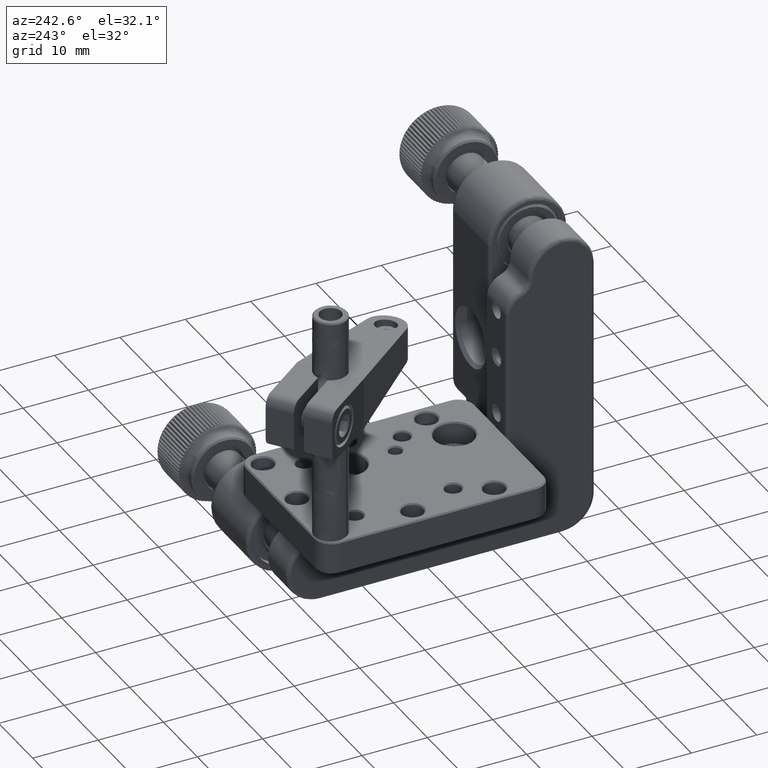
[diagram: clean part render]
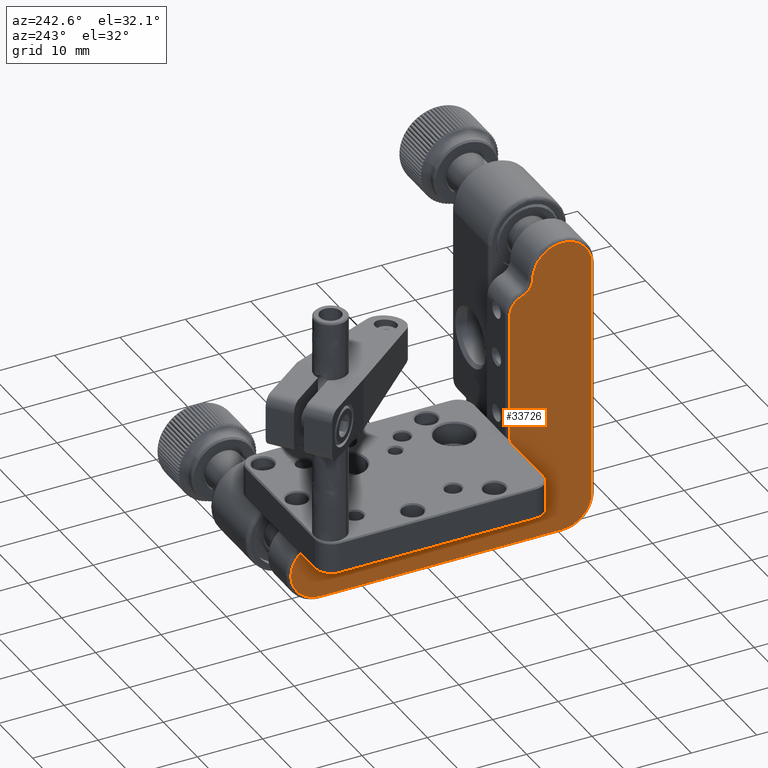
[diagram: same view with one face highlighted and labeled with its STEP entity id]
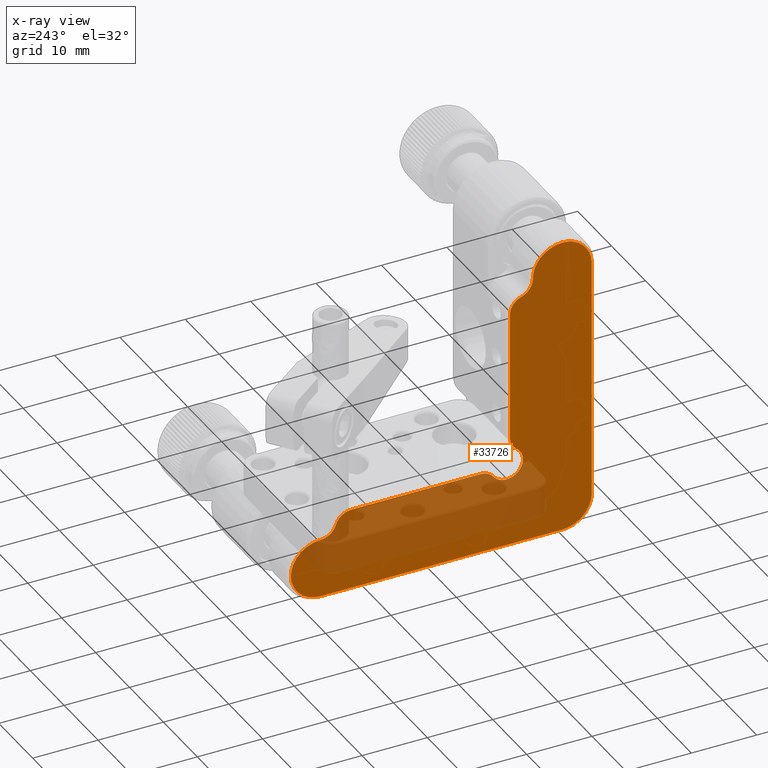
[diagram: x-ray of the same camera — body ghosted, the highlighted face saturated]
A machine part, auxiliary view. The second image highlights one B-rep face of the part: STEP entity #33726.
The next image is the same camera in x-ray: the body ghosted, the highlighted face saturated — about 34% of this face is hidden behind the body in this view.
In plain terms, the highlighted planar face has unit normal (-1, 0, 0).
Its self-contained STEP definition (entity closure, byte-faithful):
#101 = ORIENTED_EDGE ( 'NONE', *, *, #26489, .T. ) ;
#308 = CARTESIAN_POINT ( 'NONE',  ( -15.49999999999999645, -18.15695654863025865, 22.99060926522500381 ) ) ;
#451 = CARTESIAN_POINT ( 'NONE',  ( -15.50000000000000000, -12.49241278484525886, -10.20070522342076025 ) ) ;
#745 = CARTESIAN_POINT ( 'NONE',  ( -15.49999999999999822, -12.29126569502228072, -11.00396265203691115 ) ) ;
#899 = CARTESIAN_POINT ( 'NONE',  ( -15.50000000000000178, -16.16585847123962338, 22.34806293782554576 ) ) ;
#1043 = CARTESIAN_POINT ( 'NONE',  ( -15.50000000000000178, -9.047449407507558661, -12.31470221860941550 ) ) ;
#1168 = B_SPLINE_CURVE_WITH_KNOTS ( 'NONE', 3,
 ( #29521, #2992, #7769, #20885, #52750, #47686, #6904, #2414, #21174, #34290, #39056, #22644, #40524, #27395, #12831, #49147, #40813, #54225, #30957, #8348, #40223, #44975, #39922, #18160, #58698, #17867, #50047, #48856, #26498, #4456, #36014, #36614, #44389, #3859, #58398, #30681, #45565, #4746, #53923, #9235 ),
 .UNSPECIFIED., .F., .F.,
 ( 4, 1, 1, 2, 2, 1, 1, 2, 2, 1, 2, 2, 2, 1, 2, 2, 1, 1, 2, 2, 1, 1, 2, 2, 4 ),
 ( 0.000000000000000000, 0.06250000000000056899, 0.09375000000000163758, 0.1093750000000013878, 0.1250000000000011380, 0.1875000000000006661, 0.2187499999999997502, 0.2343749999999992784, 0.2499999999999988065, 0.3124999999999985012, 0.3437499999999990008, 0.3749999999999995004, 0.5000000000000025535, 0.5625000000000041078, 0.5937500000000039968, 0.6250000000000037748, 0.6875000000000021094, 0.7187500000000023315, 0.7343750000000029976, 0.7500000000000036637, 0.8125000000000075495, 0.8437500000000091038, 0.8593750000000089928, 0.8750000000000089928, 1.000000000000000000 ),
 .UNSPECIFIED. ) ;
#1334 = CARTESIAN_POINT ( 'NONE',  ( -15.50000000000000178, -8.098793398174166214, -11.63172453757016278 ) ) ;
#1453 = CARTESIAN_POINT ( 'NONE',  ( -15.49999999999999467, 19.91703639534388515, -14.22782311311680914 ) ) ;
#1542 = CARTESIAN_POINT ( 'NONE',  ( -15.50000000000000000, 20.63922934306437895, -22.46415526202876478 ) ) ;
#1728 = CARTESIAN_POINT ( 'NONE',  ( -15.50000000000000533, -20.83414153192902063, -22.34806294137855431 ) ) ;
#1837 = CARTESIAN_POINT ( 'NONE',  ( -15.50000000000000000, 19.46186726256786415, -22.89615636882984617 ) ) ;
#1932 = CARTESIAN_POINT ( 'NONE',  ( -15.50000000015971757, -7.999999998439328408, -11.50000000321939453 ) ) ;
#2044 = CARTESIAN_POINT ( 'NONE',  ( -15.50000000000000178, 22.67062919380827424, -16.80969183655279053 ) ) ;
#2129 = CARTESIAN_POINT ( 'NONE',  ( -15.50000000000000178, 22.89836560274199329, -19.46217191241514399 ) ) ;
#2414 = CARTESIAN_POINT ( 'NONE',  ( -15.50000000000000000, -22.89836560130976650, 19.46217190921475293 ) ) ;
#2434 = CARTESIAN_POINT ( 'NONE',  ( -15.50000000000000711, 14.42728365890299003, -10.59890226320357520 ) ) ;
#2618 = CARTESIAN_POINT ( 'NONE',  ( -15.50000000000000711, -19.91703639825642824, -22.77217689043723325 ) ) ;
#2631 = CARTESIAN_POINT ( 'NONE',  ( -15.49999999999999822, 22.22491422092800306, -15.97399544505506341 ) ) ;
#2719 = CARTESIAN_POINT ( 'NONE',  ( -15.50000000000000533, 21.21635590809892591, -22.08856315978979978 ) ) ;
#2721 = CARTESIAN_POINT ( 'NONE',  ( -15.50000000010647661, 13.73030399171786442, -10.49999999959265828 ) ) ;
#2810 = CARTESIAN_POINT ( 'NONE',  ( -15.50000000015971580, -12.25000000089559826, 16.11515199496088258 ) ) ;
#2903 = CARTESIAN_POINT ( 'NONE',  ( -15.50000000000000000, -22.58002355275392858, -20.40098430989682754 ) ) ;
#2917 = CARTESIAN_POINT ( 'NONE',  ( -15.50000000000000355, 22.08856315564664996, -15.78364409343038766 ) ) ;
#2992 = CARTESIAN_POINT ( 'NONE',  ( -15.50000000000000711, -22.99999999801699246, 18.63753670543276186 ) ) ;
#3009 = CARTESIAN_POINT ( 'NONE',  ( -15.49999999999999645, 16.03738134301428175, -12.00270509210193737 ) ) ;
#3110 = CARTESIAN_POINT ( 'NONE',  ( -15.50000000000000178, -11.33853470422812393, 15.61819394827450402 ) ) ;
#3197 = CARTESIAN_POINT ( 'NONE',  ( -15.50000000000000711, -22.80807780504554216, -19.81455333445901701 ) ) ;
#3397 = CARTESIAN_POINT ( 'NONE',  ( -15.50000000000000000, -10.79747556851549284, 14.92703505639021522 ) ) ;
#3859 = CARTESIAN_POINT ( 'NONE',  ( -15.50000000000000178, -19.56847453535885961, 22.87239746648150174 ) ) ;
#4043 = CARTESIAN_POINT ( 'NONE',  ( -15.50000000000000000, -11.98810993713263073, -11.52464077376316531 ) ) ;
#4456 = CARTESIAN_POINT ( 'NONE',  ( -15.50000000000000355, -20.22697634312690340, 22.65559531845407903 ) ) ;
#4482 = CARTESIAN_POINT ( 'NONE',  ( -15.50000000000000178, -14.02504195186718050, 19.04835519845952518 ) ) ;
#4632 = CARTESIAN_POINT ( 'NONE',  ( -15.50000000000000178, -12.50249836180289087, -10.05922864419506269 ) ) ;
#4746 = CARTESIAN_POINT ( 'NONE',  ( -15.50000000000000000, -19.04835520125629600, 22.97495805034708383 ) ) ;
#4778 = CARTESIAN_POINT ( 'NONE',  ( -15.50000000000000000, -14.08138633339904011, 19.35264355216270715 ) ) ;
#4811 = CARTESIAN_POINT ( 'NONE',  ( -15.50000000006654943, 18.49999999908400028, -22.99999999999892353 ) ) ;
#5217 = CARTESIAN_POINT ( 'NONE',  ( -15.50000000000000178, -12.09219735798963491, -8.630176796398046690 ) ) ;
#5278 = CARTESIAN_POINT ( 'NONE',  ( -15.50000000000000000, -10.49999999850741794, 0.1379999999999992344 ) ) ;
#5364 = CARTESIAN_POINT ( 'NONE',  ( -15.50000000000000533, -15.77781970227107600, 22.09671451996856817 ) ) ;
#5507 = CARTESIAN_POINT ( 'NONE',  ( -15.50000000000000178, -10.01211027816113308, -12.50712413303505954 ) ) ;
#5544 = CARTESIAN_POINT ( 'NONE',  ( -15.50000000000000178, -10.67615616390208899, -6.942385666775453323 ) ) ;
#5623 = CARTESIAN_POINT ( 'NONE',  ( -15.49999999999999822, 19.67437459673316269, -14.15161916725742053 ) ) ;
#5859 = EDGE_CURVE ( 'NONE', #18656, #26080, #41810, .T. ) ;
#6026 = CARTESIAN_POINT ( 'NONE',  ( -15.50000000000000178, 21.90136572585386787, -21.46254167121661638 ) ) ;
#6130 = LINE ( 'NONE', #37407, #43269 ) ;
#6417 = CARTESIAN_POINT ( 'NONE',  ( -15.50000000000000178, -11.00371867589058894, -12.29008391888597451 ) ) ;
#6509 = CARTESIAN_POINT ( 'NONE',  ( -15.50000000000000178, -13.12724032458408630, 16.59979367998847266 ) ) ;
#6511 = CARTESIAN_POINT ( 'NONE',  ( -15.50000000000000355, -19.18325954997103722, -22.94795970294516252 ) ) ;
#6621 = CARTESIAN_POINT ( 'NONE',  ( -15.50000000000000000, 20.29685008848805694, -22.62587423534057862 ) ) ;
#6718 = CARTESIAN_POINT ( 'NONE',  ( -15.50000000000000000, -8.839714798412275698, -12.21456294979482848 ) ) ;
#6827 = CARTESIAN_POINT ( 'NONE',  ( -15.50000000000000000, 21.79169993514635095, -15.42771209313067970 ) ) ;
#6833 = EDGE_CURVE ( 'NONE', #13639, #45346, #24684, .T. ) ;
#6904 = CARTESIAN_POINT ( 'NONE',  ( -15.50000000000000178, -22.93150129466717502, 19.28299919169977983 ) ) ;
#6922 = CARTESIAN_POINT ( 'NONE',  ( -15.50000000000000355, 20.19030816433711095, -22.67062919800791576 ) ) ;
#7113 = CARTESIAN_POINT ( 'NONE',  ( -15.50000000000000178, -21.22218030095627483, -22.09671452339237163 ) ) ;
#7232 = B_SPLINE_CURVE_WITH_KNOTS ( 'NONE', 3,
 ( #15416, #38351, #33874, #11259, #44848, #21050, #57696, #34735, #35032, #52921, #30561, #35604, #21628, #26676, #39807, #44272 ),
 .UNSPECIFIED., .F., .F.,
 ( 4, 1, 2, 2, 2, 1, 2, 2, 4 ),
 ( 0.000000000000000000, 0.1249999999999999167, 0.1874999999999998612, 0.2499999999999997780, 0.4999999999999988898, 0.6249999999999988898, 0.6874999999999988898, 0.7499999999999988898, 1.000000000000000000 ),
 .UNSPECIFIED. ) ;
#7273 = VERTEX_POINT ( 'NONE', #4811 ) ;
#7394 = CARTESIAN_POINT ( 'NONE',  ( -15.49999999999999822, -20.12111814566462087, -22.69802070286225870 ) ) ;
#7407 = CARTESIAN_POINT ( 'NONE',  ( -15.50000000000000000, 20.83414152895990412, -14.65193706183728573 ) ) ;
#7495 = CARTESIAN_POINT ( 'NONE',  ( -15.49999999999999822, 15.47235906811537021, -11.19763399847615126 ) ) ;
#7591 = CARTESIAN_POINT ( 'NONE',  ( -15.50000000000000178, -11.66889686358426736, 15.84675668709614449 ) ) ;
#7623 = ORIENTED_EDGE ( 'NONE', *, *, #18124, .T. ) ;
#7769 = CARTESIAN_POINT ( 'NONE',  ( -15.50000000000000000, -22.99060926776432012, 18.84304345140767367 ) ) ;
#7893 = CARTESIAN_POINT ( 'NONE',  ( -15.50000000000000000, -13.89238977702136424, 17.77364219649279420 ) ) ;
#8348 = CARTESIAN_POINT ( 'NONE',  ( -15.50000000000000533, -21.90136572629067047, 21.46254166753215742 ) ) ;
#8396 = CARTESIAN_POINT ( 'NONE',  ( -15.50000000000000000, 0.1380000000000009552, -23.00000000000000000 ) ) ;
#8650 = CARTESIAN_POINT ( 'NONE',  ( -15.49999999999999645, 16.22562538999379811, -12.55213903818662580 ) ) ;
#8667 = CARTESIAN_POINT ( 'NONE',  ( -15.50000000000000178, -17.32562540336088475, 22.84838083236349604 ) ) ;
#8820 = CARTESIAN_POINT ( 'NONE',  ( -15.49999999999999822, -11.42223111570783090, -12.05612670774286954 ) ) ;
#8951 = CARTESIAN_POINT ( 'NONE',  ( -15.50000000000000000, 18.24076449479857942, -14.00000000466734207 ) ) ;
#8967 = CARTESIAN_POINT ( 'NONE',  ( -15.49999999999999645, -14.00000000451968951, 18.77541062009800044 ) ) ;
#8975 = DIRECTION ( 'NONE',  ( -1.000000000000000000, 0.000000000000000000, 0.000000000000000000 ) ) ;
#9235 = CARTESIAN_POINT ( 'NONE',  ( -15.50000000015971935, -18.50000000156878954, 22.99999999625456937 ) ) ;
#9266 = CARTESIAN_POINT ( 'NONE',  ( -15.50000000000000178, -18.36246329458047555, 22.99999999548031226 ) ) ;
#9419 = CARTESIAN_POINT ( 'NONE',  ( -15.50000000000000000, -12.50045898228703223, -9.917440904586790396 ) ) ;
#9705 = CARTESIAN_POINT ( 'NONE',  ( -15.50000000000000000, -12.47672285327616315, -10.34341308632722445 ) ) ;
#9725 = VECTOR ( 'NONE', #48382, 1000.000000000000000 ) ;
#9767 = DIRECTION ( 'NONE',  ( 0.000000000000000000, 0.000000000000000000, -1.000000000000000000 ) ) ;
#10009 = CARTESIAN_POINT ( 'NONE',  ( -15.50000000000000533, -9.356862174025264878, -12.41632651386384012 ) ) ;
#10503 = CARTESIAN_POINT ( 'NONE',  ( -15.49999999999999645, 22.99060926963782947, -18.84304345425109162 ) ) ;
#10604 = CARTESIAN_POINT ( 'NONE',  ( -15.50000000000000178, -9.728111037936290728, -12.48700372308148410 ) ) ;
#10997 = CARTESIAN_POINT ( 'NONE',  ( -15.50000000015971580, -12.25000000089559826, 16.11515199496088258 ) ) ;
#11020 = CARTESIAN_POINT ( 'NONE',  ( -15.49999999999999822, 20.89750978558359051, -14.69107888371854287 ) ) ;
#11200 = CARTESIAN_POINT ( 'NONE',  ( -15.50000000000000355, -10.96512580856627395, -12.30664749743284858 ) ) ;
#11259 = CARTESIAN_POINT ( 'NONE',  ( -15.49999999999999822, -7.749592089162936404, -11.21357429661077632 ) ) ;
#11294 = CARTESIAN_POINT ( 'NONE',  ( -15.50000000000000000, -19.46217191202575236, -22.89836560289024447 ) ) ;
#11310 = CARTESIAN_POINT ( 'NONE',  ( -15.50000000000000533, 20.70325320258278978, -14.57549187022692649 ) ) ;
#11325 = CARTESIAN_POINT ( 'NONE',  ( -15.50000000015971757, 22.99999999759440072, -18.50000000209171702 ) ) ;
#11399 = CARTESIAN_POINT ( 'NONE',  ( -15.50000000000000355, 20.40098430794065365, -22.58002355359532487 ) ) ;
#11688 = CARTESIAN_POINT ( 'NONE',  ( -15.49999999999999645, 19.81455333223175685, -22.80807780565981702 ) ) ;
#11888 = CARTESIAN_POINT ( 'NONE',  ( -15.50000000000000000, 22.34961094938589810, -16.16467744570687159 ) ) ;
#11978 = CARTESIAN_POINT ( 'NONE',  ( -15.50000000000000000, 14.98952199108073025, -10.82321941466644333 ) ) ;
#12337 = EDGE_CURVE ( 'NONE', #47474, #7273, #13246, .T. ) ;
#12831 = CARTESIAN_POINT ( 'NONE',  ( -15.50000000000000000, -22.53403797003634068, 20.50433474589222271 ) ) ;
#12917 = EDGE_CURVE ( 'NONE', #26080, #20055, #22583, .T. ) ;
#13029 = CARTESIAN_POINT ( 'NONE',  ( -15.50000000000000355, -22.89615636837832824, -19.46186726493184338 ) ) ;
#13246 = B_SPLINE_CURVE_WITH_KNOTS ( 'NONE', 3,
 ( #16144, #29538, #10503, #34306, #20319, #15853, #20028, #2129, #33130, #38788, #24795, #33431, #42969, #52482, #51297, #56081, #47704, #38489, #20900, #6026, #56963, #24202, #2719, #56676, #42384, #56373, #1542, #11399, #6621, #14959, #6922, #34009, #11688, #37892, #1837, #15550, #43260, #52178, #19724, #20613 ),
 .UNSPECIFIED., .F., .F.,
 ( 4, 1, 1, 2, 2, 1, 1, 2, 2, 1, 2, 2, 2, 1, 2, 2, 1, 1, 2, 2, 1, 1, 2, 2, 4 ),
 ( 0.000000000000000000, 0.06250000000000137390, 0.09375000000000278944, 0.1093750000000026923, 0.1250000000000026090, 0.1874999999999984179, 0.2187499999999963363, 0.2343749999999960032, 0.2499999999999956424, 0.3124999999999977796, 0.3437499999999978351, 0.3749999999999978906, 0.4999999999999974465, 0.5624999999999972244, 0.5937499999999971134, 0.6249999999999968914, 0.6874999999999972244, 0.7187499999999967804, 0.7343749999999967804, 0.7499999999999967804, 0.8124999999999967804, 0.8437499999999976685, 0.8593749999999981126, 0.8749999999999985567, 1.000000000000000000 ),
 .UNSPECIFIED. ) ;
#13433 = CARTESIAN_POINT ( 'NONE',  ( -15.50000000000000355, -16.91162032150598549, 22.71050495979846673 ) ) ;
#13437 = CARTESIAN_POINT ( 'NONE',  ( -15.50000000015971757, -14.00000000434766356, 18.49999999853440258 ) ) ;
#13581 = CARTESIAN_POINT ( 'NONE',  ( -15.50000000000000000, -11.50576199091818097, -11.99641555116131997 ) ) ;
#13639 = VERTEX_POINT ( 'NONE', #58722 ) ;
#13723 = CARTESIAN_POINT ( 'NONE',  ( -15.50000000000000178, -14.53584474249779568, 20.63922934172885348 ) ) ;
#13904 = CARTESIAN_POINT ( 'NONE',  ( -15.50000000000000355, -10.60954541442888832, -6.757955660591016489 ) ) ;
#14012 = CARTESIAN_POINT ( 'NONE',  ( -15.50000000000000178, -17.74890346439388011, 22.93700384668426651 ) ) ;
#14156 = CARTESIAN_POINT ( 'NONE',  ( -15.50000000000000178, -11.63771338618392726, -8.103285034646962259 ) ) ;
#14190 = CARTESIAN_POINT ( 'NONE',  ( -15.50000000000000000, -10.54474000137156153, -6.473258102663212554 ) ) ;
#14274 = CARTESIAN_POINT ( 'NONE',  ( -15.49999999999999822, 19.08140427538432604, -14.03678036429819542 ) ) ;
#14304 = CARTESIAN_POINT ( 'NONE',  ( -15.50000000000000000, -15.20830006514129806, 21.57228790660404272 ) ) ;
#14368 = EDGE_CURVE ( 'NONE', #19706, #49832, #29440, .T. ) ;
#14452 = CARTESIAN_POINT ( 'NONE',  ( -15.50000000000000000, -12.12696278849903742, -11.31397018462759796 ) ) ;
#14571 = CARTESIAN_POINT ( 'NONE',  ( -15.50000000000000355, 19.25109653567218970, -14.06299615292988747 ) ) ;
#14655 = ORIENTED_EDGE ( 'NONE', *, *, #12337, .T. ) ;
#14742 = VERTEX_POINT ( 'NONE', #47515 ) ;
#14959 = CARTESIAN_POINT ( 'NONE',  ( -15.50000000000000178, 20.22697634120864407, -22.65559532150463440 ) ) ;
#15353 = CARTESIAN_POINT ( 'NONE',  ( -15.49999999999999822, -11.20179072708237022, -12.19532546717636379 ) ) ;
#15416 = CARTESIAN_POINT ( 'NONE',  ( -15.50000000015971757, -7.999999998439328408, -11.50000000321939453 ) ) ;
#15550 = CARTESIAN_POINT ( 'NONE',  ( -15.50000000000000000, 19.39054132041762557, -22.91114970850638244 ) ) ;
#15556 = VECTOR ( 'NONE', #9767, 1000.000000000000000 ) ;
#15651 = CARTESIAN_POINT ( 'NONE',  ( -15.50000000000000000, -9.587459925046069031, -12.46897079156902954 ) ) ;
#15716 = EDGE_CURVE ( 'NONE', #14742, #38605, #6130, .T. ) ;
#15745 = CARTESIAN_POINT ( 'NONE',  ( -15.49999999999999822, -12.96495232926114127, 16.47393801215991971 ) ) ;
#15747 = CARTESIAN_POINT ( 'NONE',  ( -15.50000000000000355, -19.28299919448957311, -22.93150129635299450 ) ) ;
#15853 = CARTESIAN_POINT ( 'NONE',  ( -15.50000000000000533, 22.93700385082711080, -19.25109653879880511 ) ) ;
#15940 = CARTESIAN_POINT ( 'NONE',  ( -15.50000000000000178, -11.08361804470706069, -12.25340113220476645 ) ) ;
#16036 = CARTESIAN_POINT ( 'NONE',  ( -15.50000000000000178, -19.67437459961468704, -22.84838083640731909 ) ) ;
#16053 = CARTESIAN_POINT ( 'NONE',  ( -15.49999999999999822, 22.62587423114653973, -16.70314991246544878 ) ) ;
#16144 = CARTESIAN_POINT ( 'NONE',  ( -15.50000000015971757, 22.99999999759440072, -18.50000000209171702 ) ) ;
#16147 = CARTESIAN_POINT ( 'NONE',  ( -15.50000000000000178, 14.74887388194845350, -10.70062817855785298 ) ) ;
#16182 = ORIENTED_EDGE ( 'NONE', *, *, #15716, .T. ) ;
#16323 = CARTESIAN_POINT ( 'NONE',  ( -15.49999999999999645, -22.08856315875969756, -21.21635590956258000 ) ) ;
#16336 = CARTESIAN_POINT ( 'NONE',  ( -15.50000000000000000, 22.46415525785092981, -16.36077065809168829 ) ) ;
#16431 = CARTESIAN_POINT ( 'NONE',  ( -15.50000000000000178, 14.45666179357415437, -10.60761022774042139 ) ) ;
#16529 = CARTESIAN_POINT ( 'NONE',  ( -15.50000000000000178, -11.75086842189330660, 15.89765003325123871 ) ) ;
#16614 = CARTESIAN_POINT ( 'NONE',  ( -15.50000000000000533, -21.46254167020278203, -21.90136572680769333 ) ) ;
#16880 = VERTEX_POINT ( 'NONE', #23704 ) ;
#16947 = ORIENTED_EDGE ( 'NONE', *, *, #26230, .T. ) ;
#17198 = CARTESIAN_POINT ( 'NONE',  ( -15.49999999999999822, -22.97495805250168388, -19.04835520128878201 ) ) ;
#17300 = CARTESIAN_POINT ( 'NONE',  ( -15.50000000000000178, 15.92399446638904870, -11.77320841828667852 ) ) ;
#17329 = LINE ( 'NONE', #8396, #32523 ) ;
#17408 = CARTESIAN_POINT ( 'NONE',  ( -15.50000000000000178, -12.99387846219170939, 16.49512826328689385 ) ) ;
#17589 = CARTESIAN_POINT ( 'NONE',  ( -15.50000000000000178, 16.41859263597514484, -12.88520555148496882 ) ) ;
#17867 = CARTESIAN_POINT ( 'NONE',  ( -15.50000000000000178, -20.83532255706576919, 22.34961095021183297 ) ) ;
#17876 = CARTESIAN_POINT ( 'NONE',  ( -15.49999999999999822, 17.67639229199434681, -13.86068928373189024 ) ) ;
#18043 = CARTESIAN_POINT ( 'NONE',  ( -15.49999999999999822, -12.14834562678278473, -8.721295580451611684 ) ) ;
#18124 = EDGE_CURVE ( 'NONE', #25739, #14742, #28246, .T. ) ;
#18160 = CARTESIAN_POINT ( 'NONE',  ( -15.50000000000000000, -21.09131805600828358, 22.17982826616640324 ) ) ;
#18173 = CARTESIAN_POINT ( 'NONE',  ( -15.50000000000000000, 17.30326893391682574, -13.70252443416317689 ) ) ;
#18192 = CARTESIAN_POINT ( 'NONE',  ( -15.49999999999999822, -14.10384363576897115, 19.46186726198277128 ) ) ;
#18200 = FACE_OUTER_BOUND ( 'NONE', #20723, .T. ) ;
#18345 = CARTESIAN_POINT ( 'NONE',  ( -15.50000000000000355, -12.33043209744818647, -9.090190557370554814 ) ) ;
#18656 = VERTEX_POINT ( 'NONE', #33376 ) ;
#18774 = CARTESIAN_POINT ( 'NONE',  ( -15.50000000000000355, -16.87888185742263047, 22.69802069903595410 ) ) ;
#18924 = CARTESIAN_POINT ( 'NONE',  ( -15.49999999999999822, -12.23636497585104443, -11.12357559465902312 ) ) ;
#18956 = CARTESIAN_POINT ( 'NONE',  ( -15.50000000000000178, -10.50000000368367026, -6.095603519261961978 ) ) ;
#19044 = CARTESIAN_POINT ( 'NONE',  ( -15.50000000015971757, 18.49999999887835145, -14.00000000471161421 ) ) ;
#19106 = EDGE_CURVE ( 'NONE', #16880, #45764, #21562, .T. ) ;
#19262 = CARTESIAN_POINT ( 'NONE',  ( -15.49999999999999822, -10.80781995700431075, -7.205858146731564773 ) ) ;
#19522 = CARTESIAN_POINT ( 'NONE',  ( -15.50000000000000533, -10.83617719154156767, -12.35785066681609834 ) ) ;
#19637 = CARTESIAN_POINT ( 'NONE',  ( -15.50000000000000178, 20.01998259398833824, -14.26431517243118208 ) ) ;
#19706 = VERTEX_POINT ( 'NONE', #58430 ) ;
#19724 = CARTESIAN_POINT ( 'NONE',  ( -15.49999999999999645, 18.77541062026798713, -23.00000000009823253 ) ) ;
#20028 = CARTESIAN_POINT ( 'NONE',  ( -15.50000000000000000, 22.93150129623182210, -19.28299919480681623 ) ) ;
#20055 = VERTEX_POINT ( 'NONE', #54190 ) ;
#20233 = CARTESIAN_POINT ( 'NONE',  ( -15.50000000000000000, 22.73771997961375035, -16.97910169584036666 ) ) ;
#20319 = CARTESIAN_POINT ( 'NONE',  ( -15.50000000000000000, 22.94795970283777820, -19.18325955024647556 ) ) ;
#20613 = CARTESIAN_POINT ( 'NONE',  ( -15.50000000006654943, 18.49999999908400028, -22.99999999999892353 ) ) ;
#20723 = EDGE_LOOP ( 'NONE', ( #57251, #50552, #29999, #14655, #33545, #7623, #16182, #32304, #30815, #16947, #43575, #36760, #101, #47577, #43990, #40378 ) ) ;
#20885 = CARTESIAN_POINT ( 'NONE',  ( -15.49999999999999645, -22.96321963786072828, 19.08140427540685380 ) ) ;
#20900 = CARTESIAN_POINT ( 'NONE',  ( -15.50000000000000178, 22.09671452255964397, -21.22218030195980276 ) ) ;
#20903 = CARTESIAN_POINT ( 'NONE',  ( -15.50000000000000000, 15.75636597628470703, -11.53504767408210618 ) ) ;
#20997 = CARTESIAN_POINT ( 'NONE',  ( -15.50000000000000711, -12.12652698046998978, 16.07632152983881113 ) ) ;
#21050 = CARTESIAN_POINT ( 'NONE',  ( -15.50000000000000178, -7.645502409344003603, -11.11726837354632380 ) ) ;
#21083 = CARTESIAN_POINT ( 'NONE',  ( -15.50000000000000533, -22.62587423453619806, -20.29685009049494937 ) ) ;
#21174 = CARTESIAN_POINT ( 'NONE',  ( -15.50000000000000355, -22.84838083495015937, 19.67437459678547285 ) ) ;
#21291 = CARTESIAN_POINT ( 'NONE',  ( -15.49999999999999822, -10.69914660449618715, 14.71253043212597156 ) ) ;
#21562 = LINE ( 'NONE', #52857, #9725 ) ;
#21628 = CARTESIAN_POINT ( 'NONE',  ( -15.50000000000000000, -6.613254561579513968, -10.57592241919541109 ) ) ;
#22052 = CARTESIAN_POINT ( 'NONE',  ( -15.50000000015971757, 16.11515199382320063, -12.25000000151139901 ) ) ;
#22227 = CARTESIAN_POINT ( 'NONE',  ( -15.50000000000000355, -12.44548759714331787, -9.446987022048185523 ) ) ;
#22355 = CARTESIAN_POINT ( 'NONE',  ( -15.50000000000000178, 17.51777355831472605, -13.80085339828614721 ) ) ;
#22373 = CARTESIAN_POINT ( 'NONE',  ( -15.50000000000000711, -14.91143684466734953, 21.21635590633601609 ) ) ;
#22583 = LINE ( 'NONE', #5278, #15556 ) ;
#22644 = CARTESIAN_POINT ( 'NONE',  ( -15.50000000000000355, -22.71050496242121497, 20.08837967872664265 ) ) ;
#22823 = CARTESIAN_POINT ( 'NONE',  ( -15.50000000000000355, -12.42614928510413819, -10.61562865319666926 ) ) ;
#22864 = CARTESIAN_POINT ( 'NONE',  ( -15.50000000015971757, 18.49999999887835145, -14.00000000471161421 ) ) ;
#23019 = EDGE_CURVE ( 'NONE', #53931, #42618, #41386, .T. ) ;
#23112 = CARTESIAN_POINT ( 'NONE',  ( -15.50000000000000000, -12.35639457651426376, -10.83543725532276447 ) ) ;
#23148 = CARTESIAN_POINT ( 'NONE',  ( -15.50000000010647661, -10.49999999984116883, -6.000000000784799781 ) ) ;
#23261 = CARTESIAN_POINT ( 'NONE',  ( -15.50000000000000355, -17.08296360477326559, 22.77217688651098015 ) ) ;
#23553 = CARTESIAN_POINT ( 'NONE',  ( -15.50000000000000355, -14.65038905095114252, 20.83532255409379275 ) ) ;
#23700 = CARTESIAN_POINT ( 'NONE',  ( -15.50000000000000533, -8.449299650459488831, -11.96183315444622863 ) ) ;
#23704 = CARTESIAN_POINT ( 'NONE',  ( -15.50000000006654766, -6.000000000981000170, -10.49999999882924406 ) ) ;
#23735 = CARTESIAN_POINT ( 'NONE',  ( -15.49999999999999645, -11.05494980696477469, -7.571309324664099449 ) ) ;
#24021 = CARTESIAN_POINT ( 'NONE',  ( -15.50000000000000000, -10.50813454871783570, -6.238143435673708659 ) ) ;
#24114 = CARTESIAN_POINT ( 'NONE',  ( -15.50000000000000355, 18.63753670543312779, -14.00000000412837231 ) ) ;
#24202 = CARTESIAN_POINT ( 'NONE',  ( -15.49999999999999645, 21.40007637625718573, -21.94705191683254952 ) ) ;
#24292 = CARTESIAN_POINT ( 'NONE',  ( -15.49999999999999645, -8.798925225708886799, -12.19270036335018226 ) ) ;
#24396 = CARTESIAN_POINT ( 'NONE',  ( -15.50000000000000533, -22.65559532072599325, -20.22697634324859806 ) ) ;
#24684 = B_SPLINE_CURVE_WITH_KNOTS ( 'NONE', 3,
 ( #22052, #40824, #8650, #59004, #40233, #17589, #35735, #31264, #49452, #26806, #18173, #22355, #40533, #17876, #36027, #49754, #8951, #45278 ),
 .UNSPECIFIED., .F., .F.,
 ( 4, 1, 1, 2, 2, 2, 1, 1, 2, 2, 4 ),
 ( 0.000000000000000000, 0.1250000000000017486, 0.1875000000000018596, 0.2187500000000019429, 0.2500000000000019984, 0.5000000000000043299, 0.6250000000000055511, 0.6875000000000072164, 0.7187500000000077716, 0.7500000000000082157, 1.000000000000000000 ),
 .UNSPECIFIED. ) ;
#24689 = CARTESIAN_POINT ( 'NONE',  ( -15.50000000000000178, -20.01998259691458770, -22.73568483107719018 ) ) ;
#24706 = CARTESIAN_POINT ( 'NONE',  ( -15.50000000000000000, 21.46254166719293721, -15.09863427625289312 ) ) ;
#24795 = CARTESIAN_POINT ( 'NONE',  ( -15.50000000000000000, 22.73568483079148450, -20.01998259752179976 ) ) ;
#24888 = CARTESIAN_POINT ( 'NONE',  ( -15.49999999999999467, -8.364860590080546388, -11.89123812590532658 ) ) ;
#25004 = CARTESIAN_POINT ( 'NONE',  ( -15.50000000015971757, 22.99999999759440072, -18.50000000209171702 ) ) ;
#25282 = CARTESIAN_POINT ( 'NONE',  ( -15.50000000000000000, -21.79169993819244411, -21.57228790988998313 ) ) ;
#25296 = CARTESIAN_POINT ( 'NONE',  ( -15.50000000000000000, 22.97495804852195889, -17.95164480149699671 ) ) ;
#25560 = CARTESIAN_POINT ( 'NONE',  ( -15.50000000000000355, -22.34961095259155428, -20.83532255728006533 ) ) ;
#25576 = CARTESIAN_POINT ( 'NONE',  ( -15.49999999999999467, 22.17982826546743169, -15.90868194672598257 ) ) ;
#25619 = EDGE_CURVE ( 'NONE', #7273, #25739, #17329, .T. ) ;
#25739 = VERTEX_POINT ( 'NONE', #37857 ) ;
#25753 = CARTESIAN_POINT ( 'NONE',  ( -15.50000000000000711, -11.61479445064679972, 15.81171135401272032 ) ) ;
#26043 = CARTESIAN_POINT ( 'NONE',  ( -15.50000000000000000, -10.90377913777429342, 15.09945844448710517 ) ) ;
#26080 = VERTEX_POINT ( 'NONE', #53906 ) ;
#26230 = EDGE_CURVE ( 'NONE', #42618, #18656, #39857, .T. ) ;
#26334 = CARTESIAN_POINT ( 'NONE',  ( -15.50000000000000355, -12.72679158463217775, 16.30630952186550076 ) ) ;
#26460 = B_SPLINE_CURVE_WITH_KNOTS ( 'NONE', 3,
 ( #2721, #34592, #56966, #57247, #39938, #2434, #16431, #16147, #11978, #34308, #7495, #34877, #29835, #53655, #20903, #17300, #3009, #53059 ),
 .UNSPECIFIED., .F., .F.,
 ( 4, 1, 1, 2, 2, 2, 1, 1, 2, 2, 4 ),
 ( 0.000000000000000000, 0.1250000000000021094, 0.1875000000000030254, 0.2187500000000024702, 0.2500000000000018874, 0.4999999999999998890, 0.6249999999999988898, 0.6874999999999988898, 0.7187499999999983347, 0.7499999999999977796, 1.000000000000000000 ),
 .UNSPECIFIED. ) ;
#26489 = EDGE_CURVE ( 'NONE', #20055, #19706, #28452, .T. ) ;
#26498 = CARTESIAN_POINT ( 'NONE',  ( -15.50000000000000178, -20.29685009035953769, 22.62587423225624050 ) ) ;
#26543 = DIRECTION ( 'NONE',  ( 0.000000000000000000, -1.000000000000000000, 0.000000000000000000 ) ) ;
#26676 = CARTESIAN_POINT ( 'NONE',  ( -15.49999999999999822, -6.380472843176544728, -10.52169211878682553 ) ) ;
#26683 = CARTESIAN_POINT ( 'NONE',  ( -15.49999999999999645, -12.15846256306681461, -8.738433546153636655 ) ) ;
#26699 = B_SPLINE_CURVE_WITH_KNOTS ( 'NONE', 3,
 ( #19044, #24114, #55394, #14274, #27981, #14571, #42291, #32747, #5623, #1453, #19637, #37797, #55989, #47618, #47335, #11310, #7407, #11020, #29448, #24706, #6827, #38974, #2917, #25576, #2631, #11888, #16336, #57159, #16053, #43743, #2044, #20233, #34499, #29739, #38405, #56592, #52093, #25296, #33927, #25004 ),
 .UNSPECIFIED., .F., .F.,
 ( 4, 1, 1, 2, 2, 1, 1, 2, 2, 1, 2, 2, 2, 1, 2, 2, 1, 1, 2, 2, 1, 1, 2, 2, 4 ),
 ( 0.000000000000000000, 0.06250000000000256739, 0.09375000000000309475, 0.1093750000000026368, 0.1250000000000021649, 0.1875000000000001665, 0.2187500000000000000, 0.2343750000000000278, 0.2500000000000000555, 0.3125000000000017764, 0.3437500000000026645, 0.3750000000000034972, 0.5000000000000057732, 0.5625000000000074385, 0.5937500000000089928, 0.6250000000000104361, 0.6875000000000135447, 0.7187500000000145439, 0.7343750000000147660, 0.7500000000000148770, 0.8125000000000123235, 0.8437500000000108802, 0.8593750000000104361, 0.8750000000000099920, 1.000000000000000000 ),
 .UNSPECIFIED. ) ;
#26712 = CARTESIAN_POINT ( 'NONE',  ( -15.50000000000000533, -22.91861367080529277, -19.35264355508530798 ) ) ;
#26806 = CARTESIAN_POINT ( 'NONE',  ( -15.50000000000000178, 17.13084554574081508, -13.59622086483249070 ) ) ;
#26828 = CARTESIAN_POINT ( 'NONE',  ( -15.50000000015971935, -18.50000000156878954, 22.99999999625456937 ) ) ;
#26982 = CARTESIAN_POINT ( 'NONE',  ( -15.50000000000000178, -11.40642665368300790, -12.06698443874376991 ) ) ;
#27127 = CARTESIAN_POINT ( 'NONE',  ( -15.50000000015971757, -14.00000000434766356, 18.49999999853440258 ) ) ;
#27277 = CARTESIAN_POINT ( 'NONE',  ( -15.50000000000000000, -12.36178804273851384, -9.174857031984620548 ) ) ;
#27395 = CARTESIAN_POINT ( 'NONE',  ( -15.50000000000000178, -22.62815395953094466, 20.29765838719501403 ) ) ;
#27575 = CARTESIAN_POINT ( 'NONE',  ( -15.50000000000000000, -12.45515877504810653, -10.48046977361791754 ) ) ;
#27727 = CARTESIAN_POINT ( 'NONE',  ( -15.49999999999999822, -17.91859572466837847, 22.96321963531367416 ) ) ;
#27981 = CARTESIAN_POINT ( 'NONE',  ( -15.50000000000000000, 19.18325954716605963, -14.05204030096440526 ) ) ;
#28015 = CARTESIAN_POINT ( 'NONE',  ( -15.50000000000000178, -14.32937080655402440, 20.19030816329878775 ) ) ;
#28160 = CARTESIAN_POINT ( 'NONE',  ( -15.50000000000000000, -8.347078065432446792, -11.87569955381772857 ) ) ;
#28174 = DIRECTION ( 'NONE',  ( 0.000000000000000000, 0.000000000000000000, 1.000000000000000000 ) ) ;
#28193 = CARTESIAN_POINT ( 'NONE',  ( -15.50000000000000711, -10.88095530776330655, -7.332962015734072914 ) ) ;
#28246 = B_SPLINE_CURVE_WITH_KNOTS ( 'NONE', 3,
 ( #28850, #56859, #52372, #56577, #6511, #42864, #15747, #11294, #16036, #2618, #24689, #48199, #7394, #29432, #47603, #47018, #1728, #38961, #7113, #16614, #25282, #57144, #16323, #34482, #52663, #25560, #43724, #2903, #21083, #24396, #42574, #58023, #3197, #35635, #13029, #35924, #26712, #17198, #44300, #54131 ),
 .UNSPECIFIED., .F., .F.,
 ( 4, 1, 1, 2, 2, 1, 1, 2, 2, 1, 2, 2, 2, 1, 2, 2, 1, 1, 2, 2, 1, 1, 2, 2, 4 ),
 ( 0.000000000000000000, 0.06249999999999930611, 0.09374999999999973632, 0.1093750000000008327, 0.1250000000000019429, 0.1875000000000063838, 0.2187500000000078826, 0.2343750000000079381, 0.2500000000000079936, 0.3125000000000049405, 0.3437500000000024980, 0.3750000000000000555, 0.4999999999999944489, 0.5624999999999926725, 0.5937499999999917843, 0.6249999999999908962, 0.6874999999999890088, 0.7187499999999877875, 0.7343749999999875655, 0.7499999999999872324, 0.8124999999999912292, 0.8437499999999924505, 0.8593749999999928946, 0.8749999999999933387, 1.000000000000000000 ),
 .UNSPECIFIED. ) ;
#28452 = B_SPLINE_CURVE_WITH_KNOTS ( 'NONE', 3,
 ( #23148, #18956, #24021, #45780, #14190, #42205, #13904, #5544, #19262, #28193, #50841, #46374, #23735, #32063, #50251, #34426 ),
 .UNSPECIFIED., .F., .F.,
 ( 4, 1, 2, 2, 2, 1, 2, 2, 4 ),
 ( 0.000000000000000000, 0.1249999999999997502, 0.1875000000000001665, 0.2500000000000006106, 0.5000000000000018874, 0.6250000000000025535, 0.6875000000000022204, 0.7500000000000017764, 1.000000000000000000 ),
 .UNSPECIFIED. ) ;
#28532 = CARTESIAN_POINT ( 'NONE',  ( -15.50000000010647661, -22.99999999964658670, 18.49999999926720307 ) ) ;
#28850 = CARTESIAN_POINT ( 'NONE',  ( -15.50000000010647661, -18.50000000209172057, -23.00000000005515233 ) ) ;
#29049 = CARTESIAN_POINT ( 'NONE',  ( -15.50000000000000533, -9.177147310608058106, -12.36253450037825452 ) ) ;
#29334 = CARTESIAN_POINT ( 'NONE',  ( -15.50000000000000000, -9.448831572989146110, -12.43897877025305299 ) ) ;
#29430 = CARTESIAN_POINT ( 'NONE',  ( -15.50000000015971757, -14.00000000434766356, 18.49999999853440258 ) ) ;
#29432 = CARTESIAN_POINT ( 'NONE',  ( -15.50000000000000355, -20.29765839001439431, -22.62815396064215534 ) ) ;
#29440 = B_SPLINE_CURVE_WITH_KNOTS ( 'NONE', 3,
 ( #50218, #14156, #58876, #46044, #5217, #31435, #18043, #26683, #35899, #32329, #18345, #27277, #22227, #36201, #9419, #4632, #451, #41574, #9705, #27575, #22823, #49620, #23112, #50812, #41289, #745, #18924, #55282, #14452, #44855, #54406, #4043, #40407, #31738, #58576, #13581, #54107, #8820, #26982, #45147, #15353, #15940, #6417, #11200, #19522, #46925, #33225, #43065, #34100, #5507, #10604, #15651, #29334, #10009, #47509, #29049, #1043, #51693, #6718, #24292, #33528, #42774, #51393, #23700, #33811, #24888, #28160, #46337, #1334, #1932 ),
 .UNSPECIFIED., .F., .F.,
 ( 4, 1, 1, 1, 2, 2, 2, 2, 2, 1, 2, 2, 1, 1, 2, 2, 1, 1, 2, 2, 2, 1, 1, 2, 2, 1, 2, 2, 2, 2, 2, 1, 2, 2, 1, 1, 2, 2, 1, 1, 2, 2, 4 ),
 ( 0.000000000000000000, 0.06249999999999684974, 0.09374999999999529543, 0.1093749999999945322, 0.1171874999999940464, 0.1249999999999935746, 0.1562499999999914235, 0.1874999999999892863, 0.2499999999999853451, 0.2812499999999837352, 0.2968749999999828471, 0.3124999999999820144, 0.3437499999999796829, 0.3593749999999781286, 0.3671874999999774625, 0.3749999999999767963, 0.4062499999999757971, 0.4218749999999754641, 0.4296874999999755751, 0.4374999999999756861, 0.4999999999999743538, 0.5312499999999736877, 0.5468749999999735767, 0.5546874999999737987, 0.5624999999999741318, 0.5937499999999775735, 0.6093749999999789058, 0.6249999999999802380, 0.6562499999999825695, 0.6874999999999849010, 0.7499999999999900080, 0.7812499999999923395, 0.7968749999999931166, 0.8124999999999938938, 0.8437499999999955591, 0.8593749999999967804, 0.8671874999999971134, 0.8749999999999975575, 0.9062499999999970024, 0.9218749999999970024, 0.9296874999999968914, 0.9374999999999966693, 1.000000000000000000 ),
 .UNSPECIFIED. ) ;
#29448 = CARTESIAN_POINT ( 'NONE',  ( -15.50000000000000533, 21.22218029797043570, -14.90328547972248252 ) ) ;
#29521 = CARTESIAN_POINT ( 'NONE',  ( -15.50000000010647661, -22.99999999964658670, 18.49999999926720307 ) ) ;
#29538 = CARTESIAN_POINT ( 'NONE',  ( -15.50000000000000178, 23.00000000001832134, -18.63753670814162433 ) ) ;
#29739 = CARTESIAN_POINT ( 'NONE',  ( -15.50000000000000000, 22.87239746496202031, -17.43152546745802312 ) ) ;
#29835 = CARTESIAN_POINT ( 'NONE',  ( -15.49999999999999645, 15.69389542358568690, -11.45219288402598501 ) ) ;
#29999 = ORIENTED_EDGE ( 'NONE', *, *, #30481, .T. ) ;
#30257 = EDGE_CURVE ( 'NONE', #38605, #53931, #1168, .T. ) ;
#30481 = EDGE_CURVE ( 'NONE', #45346, #47474, #26699, .T. ) ;
#30561 = CARTESIAN_POINT ( 'NONE',  ( -15.50000000000000178, -6.756092933252575428, -10.61653363619153367 ) ) ;
#30681 = CARTESIAN_POINT ( 'NONE',  ( -15.50000000000000178, -19.39054132275260045, 22.91114970591186761 ) ) ;
#30716 = DIRECTION ( 'NONE',  ( 0.000000000000000000, 0.000000000000000000, 1.000000000000000000 ) ) ;
#30815 = ORIENTED_EDGE ( 'NONE', *, *, #23019, .T. ) ;
#30957 = CARTESIAN_POINT ( 'NONE',  ( -15.50000000000000355, -22.09671452274911019, 21.22218029825001295 ) ) ;
#31088 = CARTESIAN_POINT ( 'NONE',  ( -15.49999999999999822, -13.30236600531655533, 16.75794492058203389 ) ) ;
#31264 = CARTESIAN_POINT ( 'NONE',  ( -15.50000000000000178, 16.61211004170507266, -13.16146529807674170 ) ) ;
#31290 = PLANE ( 'NONE',  #51607 ) ;
#31371 = CARTESIAN_POINT ( 'NONE',  ( -15.50000000000000178, -10.49999999850722787, 13.98953949613944658 ) ) ;
#31435 = CARTESIAN_POINT ( 'NONE',  ( -15.49999999999999822, -12.12613058534346600, -8.684631204492481160 ) ) ;
#31576 = CARTESIAN_POINT ( 'NONE',  ( -15.49999999999999822, -16.70234161308133380, 22.62815395688386744 ) ) ;
#31738 = CARTESIAN_POINT ( 'NONE',  ( -15.49999999999999822, -11.70975541401484321, -11.82580347110214802 ) ) ;
#31877 = CARTESIAN_POINT ( 'NONE',  ( -15.50000000000000533, -15.53745833306180479, 21.90136572344747634 ) ) ;
#32063 = CARTESIAN_POINT ( 'NONE',  ( -15.50000000000000000, -11.20863700132937524, -7.754362595613574882 ) ) ;
#32134 = CARTESIAN_POINT ( 'NONE',  ( -15.50000000015971935, -18.50000000156878954, 22.99999999625456937 ) ) ;
#32304 = ORIENTED_EDGE ( 'NONE', *, *, #30257, .T. ) ;
#32329 = CARTESIAN_POINT ( 'NONE',  ( -15.50000000000000533, -12.25718613372168875, -8.921168918564733374 ) ) ;
#32523 = VECTOR ( 'NONE', #26543, 1000.000000000000000 ) ;
#32747 = CARTESIAN_POINT ( 'NONE',  ( -15.50000000000000178, 19.46217190916900464, -14.10163440087645803 ) ) ;
#32842 = EDGE_CURVE ( 'NONE', #45764, #13639, #26460, .T. ) ;
#33130 = CARTESIAN_POINT ( 'NONE',  ( -15.50000000000000178, 22.84838083621739813, -19.67437460008828509 ) ) ;
#33225 = CARTESIAN_POINT ( 'NONE',  ( -15.50000000000000178, -10.57109253275531024, -12.43567655937698824 ) ) ;
#33376 = CARTESIAN_POINT ( 'NONE',  ( -15.50000000015971580, -12.25000000089559826, 16.11515199496088258 ) ) ;
#33431 = CARTESIAN_POINT ( 'NONE',  ( -15.50000000000000178, 22.71050496333596058, -20.08837968219881276 ) ) ;
#33528 = CARTESIAN_POINT ( 'NONE',  ( -15.50000000000000178, -8.777604194862909992, -12.18087361464474938 ) ) ;
#33545 = ORIENTED_EDGE ( 'NONE', *, *, #25619, .T. ) ;
#33726 = ADVANCED_FACE ( 'NONE', ( #18200 ), #31290, .T. ) ;
#33811 = CARTESIAN_POINT ( 'NONE',  ( -15.50000000000000000, -8.398437921348655522, -11.91976229201637771 ) ) ;
#33874 = CARTESIAN_POINT ( 'NONE',  ( -15.50000000000000178, -7.850606302973200279, -11.31436597739744698 ) ) ;
#33927 = CARTESIAN_POINT ( 'NONE',  ( -15.50000000000000000, 22.99999999587163302, -18.22458937988227134 ) ) ;
#34009 = CARTESIAN_POINT ( 'NONE',  ( -15.49999999999999645, 20.02089830496511524, -22.73771998381592852 ) ) ;
#34100 = CARTESIAN_POINT ( 'NONE',  ( -15.50000000000000355, -10.20161074857225003, -12.49911705362265657 ) ) ;
#34290 = CARTESIAN_POINT ( 'NONE',  ( -15.50000000000000000, -22.77217688911852989, 19.91703639541860227 ) ) ;
#34306 = CARTESIAN_POINT ( 'NONE',  ( -15.50000000000000000, 22.96321963957120715, -19.08140427839537168 ) ) ;
#34308 = CARTESIAN_POINT ( 'NONE',  ( -15.50000000000000000, 15.31922491000398523, -11.06504364032541332 ) ) ;
#34426 = CARTESIAN_POINT ( 'NONE',  ( -15.50000000015971757, -11.50000000434211600, -7.999999997978712862 ) ) ;
#34482 = CARTESIAN_POINT ( 'NONE',  ( -15.50000000000000000, -22.17982826861011958, -21.09131805626067191 ) ) ;
#34499 = CARTESIAN_POINT ( 'NONE',  ( -15.49999999999999645, 22.80807780145369179, -17.18544666846715074 ) ) ;
#34592 = CARTESIAN_POINT ( 'NONE',  ( -15.50000000000000355, 13.85973888611129823, -10.50000000264622102 ) ) ;
#34735 = CARTESIAN_POINT ( 'NONE',  ( -15.50000000000000000, -7.293643671559958186, -10.85178516064681631 ) ) ;
#34877 = CARTESIAN_POINT ( 'NONE',  ( -15.50000000000000355, 15.63051030854904155, -11.37275967896420781 ) ) ;
#34975 = CARTESIAN_POINT ( 'NONE',  ( -15.50000000000000178, -11.14574840975777548, 15.42905492946048085 ) ) ;
#35032 = CARTESIAN_POINT ( 'NONE',  ( -15.50000000000000178, -7.030229148763145197, -10.72000545210536870 ) ) ;
#35269 = CARTESIAN_POINT ( 'NONE',  ( -15.50000000000000000, -13.04780711941505444, 16.53640856489803923 ) ) ;
#35604 = CARTESIAN_POINT ( 'NONE',  ( -15.49999999999999822, -6.662161410769587455, -10.58878300532207106 ) ) ;
#35635 = CARTESIAN_POINT ( 'NONE',  ( -15.49999999999999822, -22.87239746867208368, -19.56847453543169735 ) ) ;
#35735 = CARTESIAN_POINT ( 'NONE',  ( -15.50000000000000000, 16.43571294514550019, -12.91061811651185742 ) ) ;
#35753 = CARTESIAN_POINT ( 'NONE',  ( -15.49999999999999467, -15.05294808759433955, 21.40007637434672461 ) ) ;
#35899 = CARTESIAN_POINT ( 'NONE',  ( -15.50000000000000888, -12.21589976286913881, -8.838776376660526068 ) ) ;
#35924 = CARTESIAN_POINT ( 'NONE',  ( -15.50000000000000711, -22.91114970808928675, -19.39054132280758935 ) ) ;
#36014 = CARTESIAN_POINT ( 'NONE',  ( -15.50000000000000000, -20.19030816628506031, 22.67062919497301721 ) ) ;
#36027 = CARTESIAN_POINT ( 'NONE',  ( -15.49999999999999645, 17.71034313952197081, -13.87222565512236194 ) ) ;
#36047 = CARTESIAN_POINT ( 'NONE',  ( -15.50000000000000000, -14.08885029609528061, 19.39054131987652241 ) ) ;
#36055 = CARTESIAN_POINT ( 'NONE',  ( -15.50000000000000000, -23.00000000000000000, -23.00000000000000000 ) ) ;
#36201 = CARTESIAN_POINT ( 'NONE',  ( -15.50000000000000000, -12.48021361462398282, -9.633450544860126641 ) ) ;
#36346 = CARTESIAN_POINT ( 'NONE',  ( -15.49999999999999822, -14.77508577939473255, 21.02600455472335383 ) ) ;
#36432 = CARTESIAN_POINT ( 'NONE',  ( -15.50000000006654943, -10.49999999888051505, 13.73030399139732971 ) ) ;
#36475 = CARTESIAN_POINT ( 'NONE',  ( -15.50000000010647661, 13.73030399171786442, -10.49999999959265828 ) ) ;
#36614 = CARTESIAN_POINT ( 'NONE',  ( -15.49999999999999467, -20.02089830699791406, 22.73771998087392632 ) ) ;
#36760 = ORIENTED_EDGE ( 'NONE', *, *, #12917, .T. ) ;
#36939 = CARTESIAN_POINT ( 'NONE',  ( -15.50000000000000000, -14.82017173485378336, 21.09131805305031904 ) ) ;
#37407 = CARTESIAN_POINT ( 'NONE',  ( -15.50000000000000000, -23.00000000000000000, 0.1380000000000009552 ) ) ;
#37797 = CARTESIAN_POINT ( 'NONE',  ( -15.50000000000000711, 20.08837967862998752, -14.28949503983512770 ) ) ;
#37857 = CARTESIAN_POINT ( 'NONE',  ( -15.50000000010647661, -18.50000000209172057, -23.00000000005515233 ) ) ;
#37892 = CARTESIAN_POINT ( 'NONE',  ( -15.49999999999999822, 19.56847453310735219, -22.87239746917433791 ) ) ;
#38351 = CARTESIAN_POINT ( 'NONE',  ( -15.49999999999999822, -7.942637888993036022, -11.42351718369232927 ) ) ;
#38386 = CARTESIAN_POINT ( 'NONE',  ( -15.50000000000000533, -14.00000000255136001, 18.37056510484195826 ) ) ;
#38405 = CARTESIAN_POINT ( 'NONE',  ( -15.50000000000000355, 22.89615636461453363, -17.53813273793831229 ) ) ;
#38489 = CARTESIAN_POINT ( 'NONE',  ( -15.50000000000000178, 22.30892111883729356, -20.89750978945911797 ) ) ;
#38605 = VERTEX_POINT ( 'NONE', #28532 ) ;
#38788 = CARTESIAN_POINT ( 'NONE',  ( -15.49999999999999822, 22.77217689018265645, -19.91703639882416965 ) ) ;
#38961 = CARTESIAN_POINT ( 'NONE',  ( -15.50000000000000178, -20.89750978856478270, -22.30892111947358103 ) ) ;
#38974 = CARTESIAN_POINT ( 'NONE',  ( -15.50000000000000000, 21.94705191270788092, -15.59992362540440780 ) ) ;
#39056 = CARTESIAN_POINT ( 'NONE',  ( -15.50000000000000000, -22.73568482981667671, 20.01998259407578828 ) ) ;
#39469 = CARTESIAN_POINT ( 'NONE',  ( -15.50000000000000355, -10.66251101994133776, 14.61774044926604965 ) ) ;
#39807 = CARTESIAN_POINT ( 'NONE',  ( -15.50000000000000178, -6.191573437646240130, -10.49999999857327637 ) ) ;
#39857 = B_SPLINE_CURVE_WITH_KNOTS ( 'NONE', 3,
 ( #29430, #38386, #47601, #43159, #42571, #52370, #7893, #52073, #47316, #56575, #31088, #6509, #35269, #17408, #15745, #26334, #44511, #10997 ),
 .UNSPECIFIED., .F., .F.,
 ( 4, 1, 1, 2, 2, 2, 1, 1, 2, 2, 4 ),
 ( 0.000000000000000000, 0.1250000000000019706, 0.1875000000000047740, 0.2187500000000061617, 0.2500000000000075495, 0.5000000000000091038, 0.6250000000000094369, 0.6875000000000102141, 0.7187500000000105471, 0.7500000000000108802, 1.000000000000000000 ),
 .UNSPECIFIED. ) ;
#39922 = CARTESIAN_POINT ( 'NONE',  ( -15.50000000000000533, -21.21635590927814974, 22.08856315628803202 ) ) ;
#39938 = CARTESIAN_POINT ( 'NONE',  ( -15.49999999999999645, 14.36515964647066923, -10.58170187006315999 ) ) ;
#40223 = CARTESIAN_POINT ( 'NONE',  ( -15.50000000000000000, -21.57228790949753972, 21.79169993562771523 ) ) ;
#40233 = CARTESIAN_POINT ( 'NONE',  ( -15.50000000000000178, 16.38354730288359207, -12.83110313849161521 ) ) ;
#40340 = CARTESIAN_POINT ( 'NONE',  ( -15.50000000000000178, -10.62777434776181273, 14.51996085106155299 ) ) ;
#40378 = ORIENTED_EDGE ( 'NONE', *, *, #19106, .T. ) ;
#40407 = CARTESIAN_POINT ( 'NONE',  ( -15.50000000000000178, -11.88379003978154813, -11.65169392560693495 ) ) ;
#40524 = CARTESIAN_POINT ( 'NONE',  ( -15.50000000000000000, -22.69802070166026908, 20.12111814282198097 ) ) ;
#40533 = CARTESIAN_POINT ( 'NONE',  ( -15.50000000000000178, 17.61256354124081369, -13.83748898288967588 ) ) ;
#40552 = CARTESIAN_POINT ( 'NONE',  ( -15.50000000000000178, -14.41997645095181291, 20.40098430676620822 ) ) ;
#40813 = CARTESIAN_POINT ( 'NONE',  ( -15.49999999999999822, -22.34806294055025688, 20.83414152916132167 ) ) ;
#40824 = CARTESIAN_POINT ( 'NONE',  ( -15.49999999999999822, 16.15398246020553330, -12.37347302113258429 ) ) ;
#41223 = CARTESIAN_POINT ( 'NONE',  ( -15.50000000000000533, -10.53931518289325808, 14.24248143335606187 ) ) ;
#41289 = CARTESIAN_POINT ( 'NONE',  ( -15.50000000000000355, -12.33182760194518579, -10.90168800727165532 ) ) ;
#41386 = B_SPLINE_CURVE_WITH_KNOTS ( 'NONE', 3,
 ( #26828, #9266, #308, #27727, #49468, #14012, #50366, #53952, #8667, #23261, #41723, #13433, #18774, #31576, #45003, #49773, #899, #50663, #5364, #31877, #14304, #35753, #22373, #36939, #36346, #23553, #13723, #40552, #55138, #50077, #28015, #46189, #58727, #45597, #18192, #36047, #4778, #4482, #8967, #27127 ),
 .UNSPECIFIED., .F., .F.,
 ( 4, 1, 1, 2, 2, 1, 1, 2, 2, 1, 2, 2, 2, 1, 2, 2, 1, 1, 2, 2, 1, 1, 2, 2, 4 ),
 ( 0.000000000000000000, 0.06249999999999591993, 0.09374999999999460154, 0.1093749999999939354, 0.1249999999999932832, 0.1874999999999926448, 0.2187499999999913680, 0.2343749999999907574, 0.2499999999999901190, 0.3124999999999883982, 0.3437499999999875655, 0.3749999999999867328, 0.4999999999999844569, 0.5624999999999841238, 0.5937499999999840128, 0.6249999999999837907, 0.6874999999999835687, 0.7187499999999827915, 0.7343749999999831246, 0.7499999999999834577, 0.8124999999999863443, 0.8437499999999877875, 0.8593749999999884537, 0.8749999999999890088, 1.000000000000000000 ),
 .UNSPECIFIED. ) ;
#41574 = CARTESIAN_POINT ( 'NONE',  ( -15.50000000000000355, -12.48299463210162052, -10.29495379615287298 ) ) ;
#41723 = CARTESIAN_POINT ( 'NONE',  ( -15.49999999999999467, -16.98001740613995025, 22.73568482720001072 ) ) ;
#41810 = B_SPLINE_CURVE_WITH_KNOTS ( 'NONE', 3,
 ( #2810, #20997, #57347, #16529, #7591, #25753, #44218, #3110, #34975, #26043, #3397, #21291, #39469, #53157, #40340, #41223, #31371, #36432 ),
 .UNSPECIFIED., .F., .F.,
 ( 4, 1, 1, 2, 2, 2, 1, 1, 2, 2, 4 ),
 ( 0.000000000000000000, 0.1249999999999970579, 0.1874999999999940881, 0.2187499999999933387, 0.2499999999999925615, 0.4999999999999926725, 0.6249999999999926725, 0.6874999999999920064, 0.7187499999999920064, 0.7499999999999918954, 1.000000000000000000 ),
 .UNSPECIFIED. ) ;
#42205 = CARTESIAN_POINT ( 'NONE',  ( -15.50000000000000000, -10.55395910133899129, -6.518883854504966102 ) ) ;
#42291 = CARTESIAN_POINT ( 'NONE',  ( -15.50000000000000178, 19.28299919165247545, -14.06849870750261466 ) ) ;
#42384 = CARTESIAN_POINT ( 'NONE',  ( -15.50000000000000000, 21.02600455634775045, -22.22491422508380765 ) ) ;
#42571 = CARTESIAN_POINT ( 'NONE',  ( -15.50000000000000000, -13.91829813476389965, 17.86514434371866855 ) ) ;
#42574 = CARTESIAN_POINT ( 'NONE',  ( -15.50000000000000178, -22.67062919724365955, -20.19030816639291359 ) ) ;
#42618 = VERTEX_POINT ( 'NONE', #13437 ) ;
#42774 = CARTESIAN_POINT ( 'NONE',  ( -15.49999999999999822, -8.682093781823443379, -12.12625555655740506 ) ) ;
#42864 = CARTESIAN_POINT ( 'NONE',  ( -15.50000000000000355, -19.25109653849528968, -22.93700385094360428 ) ) ;
#42969 = CARTESIAN_POINT ( 'NONE',  ( -15.49999999999999645, 22.69802070254542059, -20.12111814630765139 ) ) ;
#43065 = CARTESIAN_POINT ( 'NONE',  ( -15.49999999999999822, -10.48284259885006442, -12.45474371398888103 ) ) ;
#43159 = CARTESIAN_POINT ( 'NONE',  ( -15.50000000000000000, -13.94225582527800000, 17.95860823044212040 ) ) ;
#43260 = CARTESIAN_POINT ( 'NONE',  ( -15.50000000000000178, 19.35264355267981529, -22.91861367120418436 ) ) ;
#43269 = VECTOR ( 'NONE', #28174, 1000.000000000000000 ) ;
#43575 = ORIENTED_EDGE ( 'NONE', *, *, #5859, .T. ) ;
#43724 = CARTESIAN_POINT ( 'NONE',  ( -15.50000000000000000, -22.46415526111230676, -20.63922934489422190 ) ) ;
#43743 = CARTESIAN_POINT ( 'NONE',  ( -15.50000000000001066, 22.65559531730751885, -16.77302365970457387 ) ) ;
#43990 = ORIENTED_EDGE ( 'NONE', *, *, #47756, .T. ) ;
#44218 = CARTESIAN_POINT ( 'NONE',  ( -15.50000000000000711, -11.58938188566017224, 15.79459104485734677 ) ) ;
#44272 = CARTESIAN_POINT ( 'NONE',  ( -15.50000000006654766, -6.000000000981000170, -10.49999999882924406 ) ) ;
#44300 = CARTESIAN_POINT ( 'NONE',  ( -15.50000000000000178, -23.00000000000231992, -18.77541062282806905 ) ) ;
#44389 = CARTESIAN_POINT ( 'NONE',  ( -15.49999999999999467, -19.81455333436590038, 22.80807780283124231 ) ) ;
#44511 = CARTESIAN_POINT ( 'NONE',  ( -15.50000000000000000, -12.49729491040255169, 16.19292264518868762 ) ) ;
#44848 = CARTESIAN_POINT ( 'NONE',  ( -15.49999999999999822, -7.680253140447105054, -11.14823751508814809 ) ) ;
#44855 = CARTESIAN_POINT ( 'NONE',  ( -15.49999999999999822, -12.10347385638883111, -11.35124397292146270 ) ) ;
#44975 = CARTESIAN_POINT ( 'NONE',  ( -15.50000000000000000, -21.40007637726490231, 21.94705191326542604 ) ) ;
#45003 = CARTESIAN_POINT ( 'NONE',  ( -15.50000000000000000, -16.49566525442640952, 22.53403796736106557 ) ) ;
#45147 = CARTESIAN_POINT ( 'NONE',  ( -15.49999999999999467, -11.31493429690944907, -12.12809534712820536 ) ) ;
#45278 = CARTESIAN_POINT ( 'NONE',  ( -15.50000000015971757, 18.49999999887835145, -14.00000000471161421 ) ) ;
#45346 = VERTEX_POINT ( 'NONE', #22864 ) ;
#45565 = CARTESIAN_POINT ( 'NONE',  ( -15.50000000000000355, -19.35264355503647948, 22.91861366862989158 ) ) ;
#45597 = CARTESIAN_POINT ( 'NONE',  ( -15.50000000000000000, -14.12760253542009181, 19.56847453245640267 ) ) ;
#45764 = VERTEX_POINT ( 'NONE', #36475 ) ;
#45780 = CARTESIAN_POINT ( 'NONE',  ( -15.50000000000000355, -10.52847091130323953, -6.379385308363652918 ) ) ;
#46044 = CARTESIAN_POINT ( 'NONE',  ( -15.50000000000000178, -12.00874517113349782, -8.506911601754255869 ) ) ;
#46189 = CARTESIAN_POINT ( 'NONE',  ( -15.50000000000000000, -14.26228002075619017, 20.02089830403296844 ) ) ;
#46337 = CARTESIAN_POINT ( 'NONE',  ( -15.50000000000000355, -8.209386395730589925, -11.75239072697617893 ) ) ;
#46374 = CARTESIAN_POINT ( 'NONE',  ( -15.50000000000000000, -11.02354067928393100, -7.531676746307507386 ) ) ;
#46508 = CARTESIAN_POINT ( 'NONE',  ( -15.50000000015971757, -7.999999998439328408, -11.50000000321939453 ) ) ;
#46925 = CARTESIAN_POINT ( 'NONE',  ( -15.50000000000000178, -10.74877396191106094, -12.38707002383047850 ) ) ;
#47018 = CARTESIAN_POINT ( 'NONE',  ( -15.50000000000000178, -20.70325320554179527, -22.42450813303074142 ) ) ;
#47316 = CARTESIAN_POINT ( 'NONE',  ( -15.50000000000000000, -13.67678058971138810, 17.24078199828351998 ) ) ;
#47335 = CARTESIAN_POINT ( 'NONE',  ( -15.49999999999999467, 20.50433474574101922, -14.46596203228305200 ) ) ;
#47474 = VERTEX_POINT ( 'NONE', #11325 ) ;
#47509 = CARTESIAN_POINT ( 'NONE',  ( -15.50000000000000178, -9.309776887704694914, -12.40326459112105795 ) ) ;
#47515 = CARTESIAN_POINT ( 'NONE',  ( -15.50000000006654943, -23.00000000004058620, -18.50000000196098782 ) ) ;
#47577 = ORIENTED_EDGE ( 'NONE', *, *, #14368, .T. ) ;
#47601 = CARTESIAN_POINT ( 'NONE',  ( -15.49999999999999645, -13.98525680829033391, 18.17863570840431109 ) ) ;
#47603 = CARTESIAN_POINT ( 'NONE',  ( -15.50000000000000000, -20.50433474868781403, -22.53403797103998940 ) ) ;
#47618 = CARTESIAN_POINT ( 'NONE',  ( -15.50000000000000178, 20.29765838707105985, -14.37184604275423894 ) ) ;
#47686 = CARTESIAN_POINT ( 'NONE',  ( -15.50000000000000355, -22.93700384923871027, 19.25109653571142942 ) ) ;
#47704 = CARTESIAN_POINT ( 'NONE',  ( -15.50000000000000178, 22.34806294076526711, -20.83414153282128467 ) ) ;
#47756 = EDGE_CURVE ( 'NONE', #49832, #16880, #7232, .T. ) ;
#48199 = CARTESIAN_POINT ( 'NONE',  ( -15.50000000000000000, -20.08837968156548826, -22.71050496364318860 ) ) ;
#48382 = DIRECTION ( 'NONE',  ( 0.000000000000000000, 1.000000000000000000, 0.000000000000000000 ) ) ;
#48856 = CARTESIAN_POINT ( 'NONE',  ( -15.50000000000000000, -20.40098430974182975, 22.58002355046074783 ) ) ;
#49147 = CARTESIAN_POINT ( 'NONE',  ( -15.50000000000000000, -22.42450813213257632, 20.70325320276377212 ) ) ;
#49452 = CARTESIAN_POINT ( 'NONE',  ( -15.50000000000000355, 16.80124906065647394, -13.35425159272790552 ) ) ;
#49468 = CARTESIAN_POINT ( 'NONE',  ( -15.50000000000000000, -17.81674045289472375, 22.94795969864879837 ) ) ;
#49620 = CARTESIAN_POINT ( 'NONE',  ( -15.49999999999999645, -12.37927540966665241, -10.76999284920931288 ) ) ;
#49754 = CARTESIAN_POINT ( 'NONE',  ( -15.50000000000000533, 17.98782255739328306, -13.96068482012620926 ) ) ;
#49773 = CARTESIAN_POINT ( 'NONE',  ( -15.50000000000000178, -16.29674679760341149, 22.42450812942781369 ) ) ;
#49832 = VERTEX_POINT ( 'NONE', #46508 ) ;
#50047 = CARTESIAN_POINT ( 'NONE',  ( -15.50000000000000000, -20.63922934470070558, 22.46415525878008168 ) ) ;
#50077 = CARTESIAN_POINT ( 'NONE',  ( -15.50000000000000178, -14.34440468305492189, 20.22697634014699730 ) ) ;
#50218 = CARTESIAN_POINT ( 'NONE',  ( -15.50000000015971757, -11.50000000434211600, -7.999999997978712862 ) ) ;
#50251 = CARTESIAN_POINT ( 'NONE',  ( -15.49999999999999822, -11.34674125350089824, -7.885055934824391599 ) ) ;
#50366 = CARTESIAN_POINT ( 'NONE',  ( -15.50000000000000000, -17.71700080841676339, 22.93150129211215216 ) ) ;
#50552 = ORIENTED_EDGE ( 'NONE', *, *, #6833, .T. ) ;
#50663 = CARTESIAN_POINT ( 'NONE',  ( -15.50000000000000000, -16.10249021462366770, 22.30892111594926064 ) ) ;
#50812 = CARTESIAN_POINT ( 'NONE',  ( -15.50000000000000355, -12.34052023676967913, -10.87890870875572880 ) ) ;
#50841 = CARTESIAN_POINT ( 'NONE',  ( -15.50000000000000000, -10.96504583983410264, -7.453117328273244802 ) ) ;
#51297 = CARTESIAN_POINT ( 'NONE',  ( -15.50000000000000533, 22.53403797057539393, -20.50433474949191748 ) ) ;
#51393 = CARTESIAN_POINT ( 'NONE',  ( -15.50000000000000355, -8.571447143845531969, -12.05499079295878140 ) ) ;
#51607 = AXIS2_PLACEMENT_3D ( 'NONE', #36055, #8975, #30716 ) ;
#51693 = CARTESIAN_POINT ( 'NONE',  ( -15.50000000000000178, -8.901265616716878881, -12.24646905558353538 ) ) ;
#52073 = CARTESIAN_POINT ( 'NONE',  ( -15.50000000000000355, -13.79937182597319456, 17.48143010766703753 ) ) ;
#52093 = CARTESIAN_POINT ( 'NONE',  ( -15.50000000000000000, 22.91861366698518410, -17.64735644776258283 ) ) ;
#52178 = CARTESIAN_POINT ( 'NONE',  ( -15.50000000000000000, 19.04835519879515715, -22.97495805274622072 ) ) ;
#52370 = CARTESIAN_POINT ( 'NONE',  ( -15.50000000000000000, -13.90109774157793332, 17.80302033119900429 ) ) ;
#52372 = CARTESIAN_POINT ( 'NONE',  ( -15.50000000000000000, -18.84304345411490189, -22.99060926970975771 ) ) ;
#52482 = CARTESIAN_POINT ( 'NONE',  ( -15.50000000000000000, 22.62815396025996861, -20.29765839073801104 ) ) ;
#52663 = CARTESIAN_POINT ( 'NONE',  ( -15.50000000000000000, -22.22491422409023798, -21.02600455792459755 ) ) ;
#52750 = CARTESIAN_POINT ( 'NONE',  ( -15.50000000000000000, -22.94795970120015838, 19.18325954719830762 ) ) ;
#52857 = CARTESIAN_POINT ( 'NONE',  ( -15.50000000000000000, 0.1380000000000009552, -10.49999999847324084 ) ) ;
#52921 = CARTESIAN_POINT ( 'NONE',  ( -15.50000000000000178, -6.895458546589377846, -10.66220356715682094 ) ) ;
#53059 = CARTESIAN_POINT ( 'NONE',  ( -15.50000000015971757, 16.11515199382320063, -12.25000000151139901 ) ) ;
#53157 = CARTESIAN_POINT ( 'NONE',  ( -15.50000000000000888, -10.63931071913251714, 14.55391169855857569 ) ) ;
#53655 = CARTESIAN_POINT ( 'NONE',  ( -15.50000000000000533, 15.73517572516428054, -11.50612154117727393 ) ) ;
#53906 = CARTESIAN_POINT ( 'NONE',  ( -15.50000000006654943, -10.49999999888051505, 13.73030399139732971 ) ) ;
#53923 = CARTESIAN_POINT ( 'NONE',  ( -15.49999999999999822, -18.77541062281125051, 22.99999999785695337 ) ) ;
#53931 = VERTEX_POINT ( 'NONE', #32134 ) ;
#53952 = CARTESIAN_POINT ( 'NONE',  ( -15.50000000000000355, -17.53782809091004680, 22.89836559874051858 ) ) ;
#54107 = CARTESIAN_POINT ( 'NONE',  ( -15.50000000000000355, -11.45584077530494582, -12.03247211652592341 ) ) ;
#54131 = CARTESIAN_POINT ( 'NONE',  ( -15.50000000006654943, -23.00000000004058620, -18.50000000196098782 ) ) ;
#54190 = CARTESIAN_POINT ( 'NONE',  ( -15.50000000010647661, -10.49999999984116883, -6.000000000784799781 ) ) ;
#54225 = CARTESIAN_POINT ( 'NONE',  ( -15.50000000000000000, -22.30892111868549321, 20.89750978579205665 ) ) ;
#54406 = CARTESIAN_POINT ( 'NONE',  ( -15.49999999999999645, -12.09059370583166704, -11.37106410839893300 ) ) ;
#55138 = CARTESIAN_POINT ( 'NONE',  ( -15.50000000000000355, -14.37412576921416552, 20.29685008738145058 ) ) ;
#55282 = CARTESIAN_POINT ( 'NONE',  ( -15.49999999999999822, -12.16141788280637392, -11.25766992329977789 ) ) ;
#55394 = CARTESIAN_POINT ( 'NONE',  ( -15.50000000000000178, 18.84304345140245474, -14.00939073438449789 ) ) ;
#55989 = CARTESIAN_POINT ( 'NONE',  ( -15.50000000000000178, 20.12111814271931109, -14.30197930059970091 ) ) ;
#56081 = CARTESIAN_POINT ( 'NONE',  ( -15.50000000000000000, 22.42450813247772246, -20.70325320640204225 ) ) ;
#56373 = CARTESIAN_POINT ( 'NONE',  ( -15.49999999999999822, 20.83532255557215507, -22.34961095355301097 ) ) ;
#56575 = CARTESIAN_POINT ( 'NONE',  ( -15.50000000000000178, -13.43495636366678703, 16.91107907888946471 ) ) ;
#56577 = CARTESIAN_POINT ( 'NONE',  ( -15.50000000000000178, -19.08140427816193707, -22.96321963966589763 ) ) ;
#56592 = CARTESIAN_POINT ( 'NONE',  ( -15.50000000000000000, 22.91114970428898090, -17.60945868004863968 ) ) ;
#56676 = CARTESIAN_POINT ( 'NONE',  ( -15.50000000000000178, 21.09131805471758625, -22.17982826962054688 ) ) ;
#56859 = CARTESIAN_POINT ( 'NONE',  ( -15.50000000000000178, -18.63753670808750229, -23.00000000008243362 ) ) ;
#56963 = CARTESIAN_POINT ( 'NONE',  ( -15.50000000000000533, 21.57228790867437596, -21.79169993924204007 ) ) ;
#56966 = CARTESIAN_POINT ( 'NONE',  ( -15.50000000000000355, 14.05166828224396092, -10.51474319676657032 ) ) ;
#57144 = CARTESIAN_POINT ( 'NONE',  ( -15.50000000000000000, -21.94705191578086811, -21.40007637759979175 ) ) ;
#57159 = CARTESIAN_POINT ( 'NONE',  ( -15.49999999999999822, 22.58002354940597556, -16.59901569307340452 ) ) ;
#57247 = CARTESIAN_POINT ( 'NONE',  ( -15.50000000000000000, 14.27169575988039973, -10.55774417961759326 ) ) ;
#57251 = ORIENTED_EDGE ( 'NONE', *, *, #32842, .T. ) ;
#57347 = CARTESIAN_POINT ( 'NONE',  ( -15.50000000000000355, -11.94786096360089900, 16.00467859998945741 ) ) ;
#57696 = CARTESIAN_POINT ( 'NONE',  ( -15.50000000000000000, -7.457590274962989874, -10.95936271615604163 ) ) ;
#58023 = CARTESIAN_POINT ( 'NONE',  ( -15.49999999999999645, -22.73771998311653775, -20.02089830710123763 ) ) ;
#58398 = CARTESIAN_POINT ( 'NONE',  ( -15.50000000000000178, -19.46186726486946839, 22.89615636619590688 ) ) ;
#58430 = CARTESIAN_POINT ( 'NONE',  ( -15.50000000015971757, -11.50000000434211600, -7.999999997978712862 ) ) ;
#58576 = CARTESIAN_POINT ( 'NONE',  ( -15.50000000000000355, -11.61879191087207808, -11.90826081553640492 ) ) ;
#58698 = CARTESIAN_POINT ( 'NONE',  ( -15.50000000000000000, -21.02600455769768928, 22.22491422165371944 ) ) ;
#58722 = CARTESIAN_POINT ( 'NONE',  ( -15.50000000015971757, 16.11515199382320063, -12.25000000151139901 ) ) ;
#58727 = CARTESIAN_POINT ( 'NONE',  ( -15.49999999999999645, -14.19192219892345364, 19.81455333142833197 ) ) ;
#58876 = CARTESIAN_POINT ( 'NONE',  ( -15.49999999999999467, -11.82474217196571509, -8.275561576106165163 ) ) ;
#59004 = CARTESIAN_POINT ( 'NONE',  ( -15.50000000000000178, 16.33265395672058773, -12.74913158009788994 ) ) ;